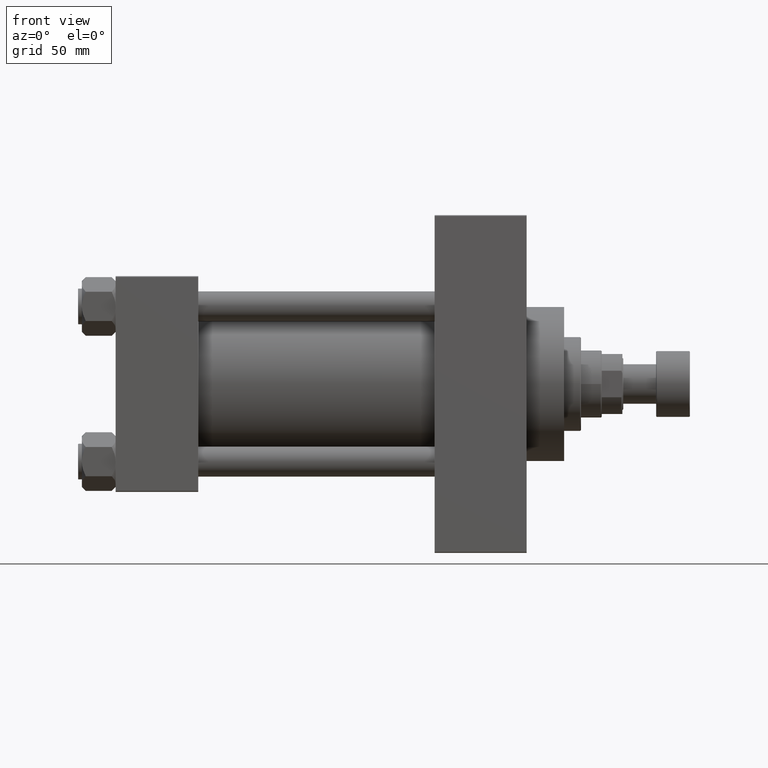
[diagram: clean part render]
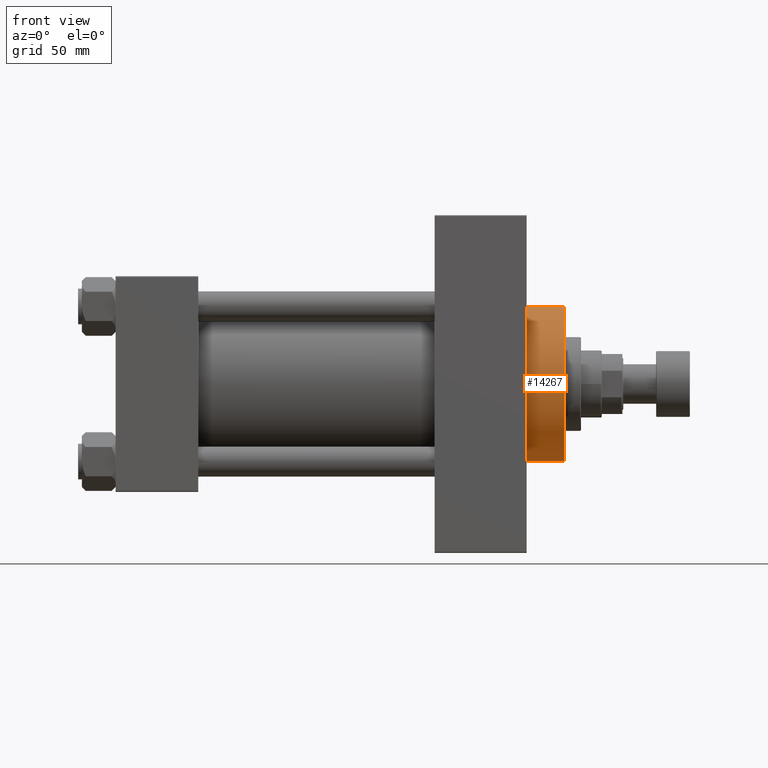
[diagram: same view with one face highlighted and labeled with its STEP entity id]
A machine part, front view. The second image highlights one B-rep face of the part: STEP entity #14267.
In plain terms, the highlighted cylindrical surface (partial cylindrical patch) has radius 41 mm, axis along (-1, -0, -0).
Its self-contained STEP definition (entity closure, byte-faithful):
#39 = ORIENTED_EDGE ( 'NONE', *, *, #29840, .F. ) ;
#693 = VERTEX_POINT ( 'NONE', #33230 ) ;
#1109 = CYLINDRICAL_SURFACE ( 'NONE', #2890, 41.00000000000000000 ) ;
#2890 = AXIS2_PLACEMENT_3D ( 'NONE', #7941, #22793, #30349 ) ;
#5946 = DIRECTION ( 'NONE',  ( 1.000000000000000000, 0.000000000000000000, 0.000000000000000000 ) ) ;
#7813 = CARTESIAN_POINT ( 'NONE',  ( 238.9999999999999716, 5.021051876504148963E-15, -41.00000000000000000 ) ) ;
#7941 = CARTESIAN_POINT ( 'NONE',  ( 238.9999999999999716, 0.000000000000000000, 0.000000000000000000 ) ) ;
#10501 = AXIS2_PLACEMENT_3D ( 'NONE', #39294, #5946, #20819 ) ;
#12799 = VERTEX_POINT ( 'NONE', #38748 ) ;
#14267 = ADVANCED_FACE ( 'NONE', ( #26212 ), #1109, .T. ) ;
#14893 = DIRECTION ( 'NONE',  ( 1.000000000000000000, 0.000000000000000000, 0.000000000000000000 ) ) ;
#15623 = DIRECTION ( 'NONE',  ( 0.000000000000000000, 0.000000000000000000, -1.000000000000000000 ) ) ;
#17960 = LINE ( 'NONE', #32805, #41855 ) ;
#18003 = AXIS2_PLACEMENT_3D ( 'NONE', #18565, #14893, #15623 ) ;
#18526 = LINE ( 'NONE', #7813, #25596 ) ;
#18565 = CARTESIAN_POINT ( 'NONE',  ( 218.9999999999999716, 0.000000000000000000, 0.000000000000000000 ) ) ;
#18788 = EDGE_CURVE ( 'NONE', #44752, #12799, #18526, .T. ) ;
#20819 = DIRECTION ( 'NONE',  ( 0.000000000000000000, 0.000000000000000000, -1.000000000000000000 ) ) ;
#22793 = DIRECTION ( 'NONE',  ( -1.000000000000000000, -0.000000000000000000, -0.000000000000000000 ) ) ;
#23735 = CIRCLE ( 'NONE', #10501, 41.00000000000000000 ) ;
#24535 = ORIENTED_EDGE ( 'NONE', *, *, #25050, .T. ) ;
#25050 = EDGE_CURVE ( 'NONE', #693, #12799, #40547, .T. ) ;
#25346 = CARTESIAN_POINT ( 'NONE',  ( 238.9999999999999716, 0.000000000000000000, 41.00000000000000000 ) ) ;
#25596 = VECTOR ( 'NONE', #43846, 1000.000000000000000 ) ;
#26005 = ORIENTED_EDGE ( 'NONE', *, *, #40523, .T. ) ;
#26212 = FACE_OUTER_BOUND ( 'NONE', #40508, .T. ) ;
#28516 = VERTEX_POINT ( 'NONE', #25346 ) ;
#29162 = DIRECTION ( 'NONE',  ( -1.000000000000000000, -0.000000000000000000, -0.000000000000000000 ) ) ;
#29840 = EDGE_CURVE ( 'NONE', #28516, #44752, #23735, .T. ) ;
#30349 = DIRECTION ( 'NONE',  ( 0.000000000000000000, 0.000000000000000000, 1.000000000000000000 ) ) ;
#32805 = CARTESIAN_POINT ( 'NONE',  ( 238.9999999999999716, 0.000000000000000000, 41.00000000000000000 ) ) ;
#33230 = CARTESIAN_POINT ( 'NONE',  ( 218.9999999999999716, 0.000000000000000000, 41.00000000000000000 ) ) ;
#34689 = CARTESIAN_POINT ( 'NONE',  ( 238.9999999999999716, 5.021051876504148963E-15, -41.00000000000000000 ) ) ;
#38748 = CARTESIAN_POINT ( 'NONE',  ( 218.9999999999999716, 5.021051876504148963E-15, -41.00000000000000000 ) ) ;
#39278 = ORIENTED_EDGE ( 'NONE', *, *, #18788, .F. ) ;
#39294 = CARTESIAN_POINT ( 'NONE',  ( 238.9999999999999716, 0.000000000000000000, 0.000000000000000000 ) ) ;
#40508 = EDGE_LOOP ( 'NONE', ( #39278, #39, #26005, #24535 ) ) ;
#40523 = EDGE_CURVE ( 'NONE', #28516, #693, #17960, .T. ) ;
#40547 = CIRCLE ( 'NONE', #18003, 41.00000000000000000 ) ;
#41855 = VECTOR ( 'NONE', #29162, 1000.000000000000000 ) ;
#43846 = DIRECTION ( 'NONE',  ( -1.000000000000000000, -0.000000000000000000, -0.000000000000000000 ) ) ;
#44752 = VERTEX_POINT ( 'NONE', #34689 ) ;